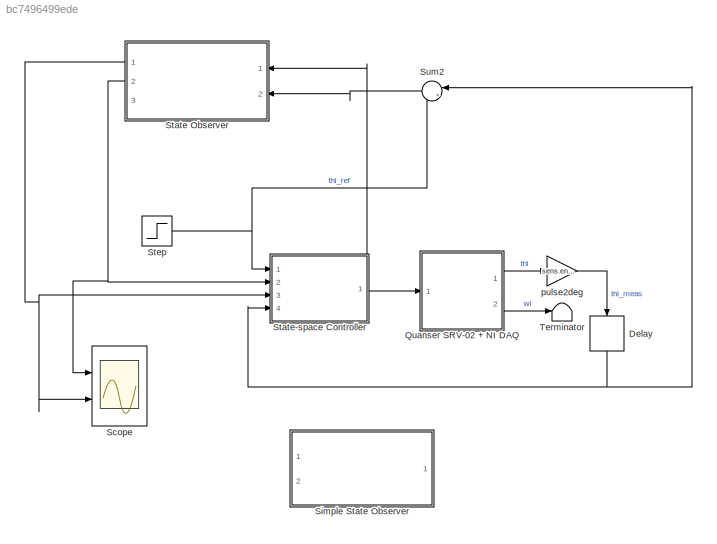
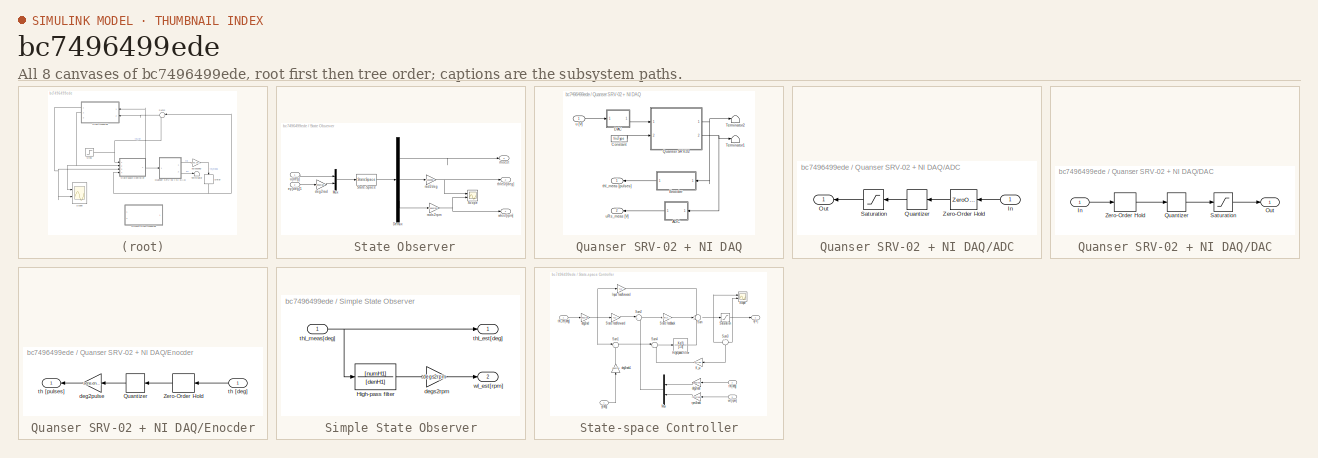
[diagram: thumbnail index - all 8 canvases of the model, root first then tree order]
MODEL slx_bc7496499ede
KIND model
CONFIG AbsTol = auto
CONFIG EnableMultiTasking = off
CONFIG FixedStep = 0.001
CONFIG MaxStep = auto
CONFIG MinStep = auto
CONFIG RelTol = 1e-3
CONFIG SampleTimeConstraint = Unconstrained
CONFIG SolverName = ode45
CONFIG StartTime = 0.0
CONFIG StopTime = 5
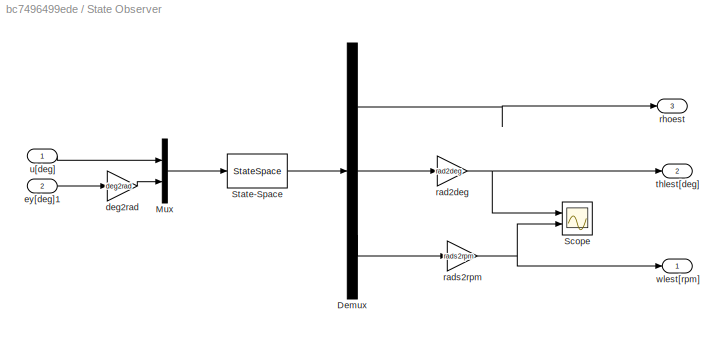
BLOCK [SubSystem]  State Observer
  Ports = [2, 3]
  RequestExecContextInheritance = off
BLOCK [Demux]  State Observer/Demux
  Outputs = 3
  Ports = [1, 3]
BLOCK [Mux]  State Observer/Mux
  DisplayOption = bar
  Inputs = 2
  Ports = [2, 1]
BLOCK [Scope]  State Observer/Scope
  Floating = off
  NumInputPorts = 2
  Ports = [2]
  ScopeSpecificationString = Simulink.scopes.TimeScopeBlockCfg('CurrentConfiguration', extmgr.ConfigurationSet(extmgr.Configuration('Core','General UI',true),extmgr.Configuration('Core','Source UI',true),extmgr.Configuration('Sources','WiredSimulink',true,'DataLoggingVariableName','ScopeData1'),extmgr.Configuration('Visuals','Time Domain',true,'SerializedDisplays',{struct('MinYLimReal','-1038.96463','MaxYLimReal','9350.68166'...<+2090ch>
BLOCK [StateSpace]  State Observer/State-Space
  A = Aest
  B = Best
  C = Cest
  D = Dest
  InitialCondition = 0
  Ports = [1, 1]
BLOCK [Gain]  State Observer/deg2rad
  Gain = deg2rad
BLOCK [Inport]  State Observer/ey[deg]1
  Port = 2
BLOCK [Gain]  State Observer/rad2deg
  Gain = rad2deg
BLOCK [Gain]  State Observer/rads2rpm
  Gain = rads2rpm
BLOCK [Outport]  State Observer/rhoest
  Port = 3
BLOCK [Outport]  State Observer/thlest[deg]
  Port = 2
BLOCK [Inport]  State Observer/u[deg]
BLOCK [Outport]  State Observer/wlest[rpm]
BLOCK [Delay] Delay
  DelayLength = 1
  InitialCondition = 0
  InputPortMap = u0
  NameLocation = left
  Ports = [1, 1]
  SampleTime = 0.001
BLOCK [SubSystem] Quanser SRV-02 + NI DAQ
  Ports = [1, 2]
  RequestExecContextInheritance = off
BLOCK [SubSystem] Quanser SRV-02 + NI DAQ/ADC
  Ports = [1, 1]
  RequestExecContextInheritance = off
BLOCK [Inport] Quanser SRV-02 + NI DAQ/ADC/In
BLOCK [Outport] Quanser SRV-02 + NI DAQ/ADC/Out
BLOCK [Quantizer] Quanser SRV-02 + NI DAQ/ADC/Quantizer
  QuantizationInterval = daq.adc.q
BLOCK [Saturate] Quanser SRV-02 + NI DAQ/ADC/Saturation
  LowerLimit = -daq.adc.fs
  UpperLimit = daq.adc.fs
BLOCK [ZeroOrderHold] Quanser SRV-02 + NI DAQ/ADC/Zero-Order Hold
  SampleTime = Ts
BLOCK [Constant] Quanser SRV-02 + NI DAQ/Constant
  Value = fricType
BLOCK [SubSystem] Quanser SRV-02 + NI DAQ/DAC
  Ports = [1, 1]
  RequestExecContextInheritance = off
BLOCK [Inport] Quanser SRV-02 + NI DAQ/DAC/In
BLOCK [Outport] Quanser SRV-02 + NI DAQ/DAC/Out
BLOCK [Quantizer] Quanser SRV-02 + NI DAQ/DAC/Quantizer
  QuantizationInterval = daq.dac.q
BLOCK [Saturate] Quanser SRV-02 + NI DAQ/DAC/Saturation
  LowerLimit = -daq.dac.fs
  UpperLimit = daq.dac.fs
BLOCK [ZeroOrderHold] Quanser SRV-02 + NI DAQ/DAC/Zero-Order Hold
  SampleTime = Ts
BLOCK [SubSystem] Quanser SRV-02 + NI DAQ/Enocder
  Ports = [1, 1]
  RequestExecContextInheritance = off
BLOCK [Quantizer] Quanser SRV-02 + NI DAQ/Enocder/Quantizer
  QuantizationInterval = sens.enc.pulse2deg
BLOCK [ZeroOrderHold] Quanser SRV-02 + NI DAQ/Enocder/Zero-Order Hold
  SampleTime = Ts
BLOCK [Gain] Quanser SRV-02 + NI DAQ/Enocder/deg2pulse
  Gain = sens.enc.deg2pulse
BLOCK [Inport] Quanser SRV-02 + NI DAQ/Enocder/th [deg]
BLOCK [Outport] Quanser SRV-02 + NI DAQ/Enocder/th [pulses]
BLOCK [ModelReference] Quanser SRV-02 + NI DAQ/Quanser SRV-02
  CopyOfModelProtected = on
  ModelNameDialog = SRV02IL_win64.slxp
  ModelReferenceVersion = 1.44
  Ports = [2, 2]
BLOCK [Terminator] Quanser SRV-02 + NI DAQ/Terminator1
BLOCK [Terminator] Quanser SRV-02 + NI DAQ/Terminator2
BLOCK [Outport] Quanser SRV-02 + NI DAQ/thl_meas [pulses]
BLOCK [Inport] Quanser SRV-02 + NI DAQ/u [V]
BLOCK [Outport] Quanser SRV-02 + NI DAQ/uRs_meas [V]
  Port = 2
BLOCK [Scope] Scope
  Floating = off
  NumInputPorts = 2
  Ports = [2]
  ScopeSpecificationString = Simulink.scopes.TimeScopeBlockCfg('CurrentConfiguration', extmgr.ConfigurationSet(extmgr.Configuration('Core','General UI',true),extmgr.Configuration('Core','Source UI',true),extmgr.Configuration('Sources','WiredSimulink',true,'DataLogging',true,'DataLoggingVariableName','MotorData','DataLoggingSaveFormat','StructureWithTime'),extmgr.Configuration('Visuals','Time Domain',true,'SerializedDisplays',...<+2131ch>
BLOCK [SubSystem] Simple State Observer
  Ports = [1, 2]
  RequestExecContextInheritance = off
BLOCK [TransferFcn] Simple State Observer/High-pass filter
  Denominator = [denH1]
  Numerator = [numH1]
BLOCK [Gain] Simple State Observer/degs2rpm
  Gain = degs2rpm
BLOCK [Outport] Simple State Observer/thl_est[deg]
BLOCK [Inport] Simple State Observer/thl_meas[deg]
BLOCK [Outport] Simple State Observer/wl_est[rpm]
  Port = 2
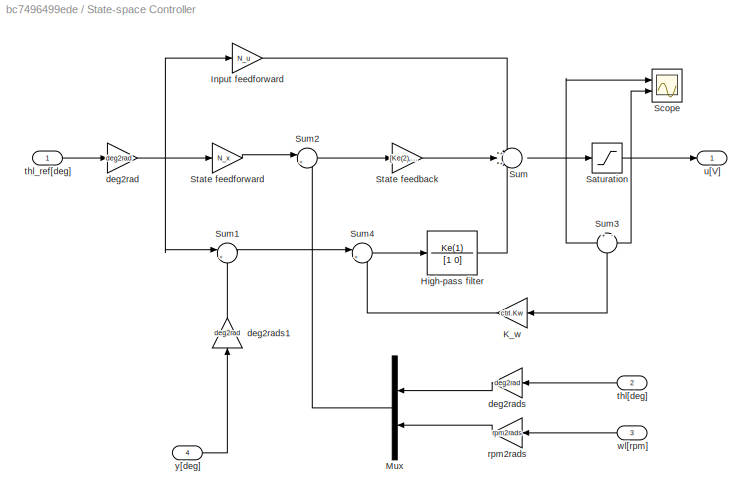
BLOCK [SubSystem] State-space Controller
  Ports = [4, 1]
  RequestExecContextInheritance = off
BLOCK [TransferFcn] State-space Controller/High-pass filter
  Denominator = [1 0]
  Numerator = Ke(1)
BLOCK [Gain] State-space Controller/Input feedforward
  Gain = N_u
BLOCK [Gain] State-space Controller/K_w
  Gain = ctrl.Kw
BLOCK [Mux] State-space Controller/Mux
  DisplayOption = bar
  Inputs = 2
  Ports = [2, 1]
BLOCK [Saturate] State-space Controller/Saturation
  LowerLimit = -10
  UpperLimit = 10
BLOCK [Scope] State-space Controller/Scope
  Floating = off
  NumInputPorts = 2
  Ports = [2]
  ScopeSpecificationString = Simulink.scopes.TimeScopeBlockCfg('CurrentConfiguration', extmgr.ConfigurationSet(extmgr.Configuration('Core','General UI',true),extmgr.Configuration('Core','Source UI',true),extmgr.Configuration('Sources','WiredSimulink',true,'DataLoggingVariableName','ScopeData1'),extmgr.Configuration('Visuals','Time Domain',true,'SerializedDisplays',{struct('MinYLimReal','-2.80705','MaxYLimReal','20.35947','YLa...<+2069ch>
BLOCK [Gain] State-space Controller/State feedback
  Gain = [Ke(2),Ke(3)].'
  Multiplication = Matrix(u*K)
BLOCK [Gain] State-space Controller/State feedforward	
  Gain = N_x
  Multiplication = Matrix(u*K)
BLOCK [Sum] State-space Controller/Sum
  Inputs = +|+|+
  Ports = [3, 1]
BLOCK [Sum] State-space Controller/Sum1
  Inputs = |+-
  Ports = [2, 1]
BLOCK [Sum] State-space Controller/Sum2
  Inputs = |+-
  Ports = [2, 1]
BLOCK [Sum] State-space Controller/Sum3
  Inputs = +|-
  NameLocation = left
  Ports = [2, 1]
BLOCK [Sum] State-space Controller/Sum4
  Inputs = |+-
  Ports = [2, 1]
BLOCK [Gain] State-space Controller/deg2rad
  Gain = deg2rad
BLOCK [Gain] State-space Controller/deg2rads
  Gain = deg2rad
  NameLocation = top
BLOCK [Gain] State-space Controller/deg2rads1
  Gain = deg2rad
  NameLocation = right
BLOCK [Gain] State-space Controller/rpm2rads
  Gain = rpm2rads
BLOCK [Inport] State-space Controller/thl[deg]
  Port = 2
BLOCK [Inport] State-space Controller/thl_ref[deg]
BLOCK [Outport] State-space Controller/u[V]
BLOCK [Inport] State-space Controller/wl[rpm]
  Port = 3
BLOCK [Inport] State-space Controller/y[deg]
  NameLocation = top
  Port = 4
BLOCK [Step] Step
  After = step_size
  SampleTime = 0
BLOCK [Sum] Sum2
  Inputs = |+-
  Ports = [2, 1]
BLOCK [Terminator] Terminator
BLOCK [Gain] pulse2deg
  Gain = sens.enc.pulse2deg
LINE  State Observer/Demux:1 ->  State Observer/rhoest:1
LINE  State Observer/Demux:2 ->  State Observer/rad2deg:1
LINE  State Observer/Demux:3 ->  State Observer/rads2rpm:1
LINE  State Observer/Mux:1 ->  State Observer/State-Space:1
LINE  State Observer/State-Space:1 ->  State Observer/Demux:1
LINE  State Observer/deg2rad:1 ->  State Observer/Mux:2
LINE  State Observer/ey[deg]1:1 ->  State Observer/deg2rad:1
NET  State Observer/rad2deg:1 ->  State Observer/Scope:1,  State Observer/thlest[deg]:1
NET  State Observer/rads2rpm:1 ->  State Observer/Scope:2,  State Observer/wlest[rpm]:1
LINE  State Observer/u[deg]:1 ->  State Observer/Mux:1
NET  State Observer:1 -> Scope:2, State-space Controller:3
NET  State Observer:2 -> Scope:1, State-space Controller:2
NET Delay:1 -> State-space Controller:4, Sum2:1
LINE Quanser SRV-02 + NI DAQ/ADC/In:1 -> Quanser SRV-02 + NI DAQ/ADC/Zero-Order Hold:1
LINE Quanser SRV-02 + NI DAQ/ADC/Quantizer:1 -> Quanser SRV-02 + NI DAQ/ADC/Saturation:1
LINE Quanser SRV-02 + NI DAQ/ADC/Saturation:1 -> Quanser SRV-02 + NI DAQ/ADC/Out:1
LINE Quanser SRV-02 + NI DAQ/ADC/Zero-Order Hold:1 -> Quanser SRV-02 + NI DAQ/ADC/Quantizer:1
LINE Quanser SRV-02 + NI DAQ/ADC:1 -> Quanser SRV-02 + NI DAQ/uRs_meas [V]:1
LINE Quanser SRV-02 + NI DAQ/Constant:1 -> Quanser SRV-02 + NI DAQ/Quanser SRV-02:2
LINE Quanser SRV-02 + NI DAQ/DAC/In:1 -> Quanser SRV-02 + NI DAQ/DAC/Zero-Order Hold:1
LINE Quanser SRV-02 + NI DAQ/DAC/Quantizer:1 -> Quanser SRV-02 + NI DAQ/DAC/Saturation:1
LINE Quanser SRV-02 + NI DAQ/DAC/Saturation:1 -> Quanser SRV-02 + NI DAQ/DAC/Out:1
LINE Quanser SRV-02 + NI DAQ/DAC/Zero-Order Hold:1 -> Quanser SRV-02 + NI DAQ/DAC/Quantizer:1
LINE Quanser SRV-02 + NI DAQ/DAC:1 -> Quanser SRV-02 + NI DAQ/Quanser SRV-02:1
LINE Quanser SRV-02 + NI DAQ/Enocder/Quantizer:1 -> Quanser SRV-02 + NI DAQ/Enocder/deg2pulse:1
LINE Quanser SRV-02 + NI DAQ/Enocder/Zero-Order Hold:1 -> Quanser SRV-02 + NI DAQ/Enocder/Quantizer:1
LINE Quanser SRV-02 + NI DAQ/Enocder/deg2pulse:1 -> Quanser SRV-02 + NI DAQ/Enocder/th [pulses]:1
LINE Quanser SRV-02 + NI DAQ/Enocder/th [deg]:1 -> Quanser SRV-02 + NI DAQ/Enocder/Zero-Order Hold:1
LINE Quanser SRV-02 + NI DAQ/Enocder:1 -> Quanser SRV-02 + NI DAQ/thl_meas [pulses]:1
NET Quanser SRV-02 + NI DAQ/Quanser SRV-02:1 -> Quanser SRV-02 + NI DAQ/Enocder:1, Quanser SRV-02 + NI DAQ/Terminator2:1
NET Quanser SRV-02 + NI DAQ/Quanser SRV-02:2 -> Quanser SRV-02 + NI DAQ/ADC:1, Quanser SRV-02 + NI DAQ/Terminator1:1
LINE Quanser SRV-02 + NI DAQ/u [V]:1 -> Quanser SRV-02 + NI DAQ/DAC:1
LINE Quanser SRV-02 + NI DAQ:1 -> pulse2deg:1
LINE Quanser SRV-02 + NI DAQ:2 -> Terminator:1
LINE Simple State Observer/High-pass filter:1 -> Simple State Observer/degs2rpm:1
LINE Simple State Observer/degs2rpm:1 -> Simple State Observer/wl_est[rpm]:1
NET Simple State Observer/thl_meas[deg]:1 -> Simple State Observer/High-pass filter:1, Simple State Observer/thl_est[deg]:1
LINE State-space Controller/High-pass filter:1 -> State-space Controller/Sum:3
LINE State-space Controller/Input feedforward:1 -> State-space Controller/Sum:1
LINE State-space Controller/K_w:1 -> State-space Controller/Sum4:2
LINE State-space Controller/Mux:1 -> State-space Controller/Sum2:2
NET State-space Controller/Saturation:1 -> State-space Controller/Scope:2, State-space Controller/Sum3:2, State-space Controller/u[V]:1
LINE State-space Controller/State feedback:1 -> State-space Controller/Sum:2
LINE State-space Controller/State feedforward	:1 -> State-space Controller/Sum2:1
LINE State-space Controller/Sum1:1 -> State-space Controller/Sum4:1
LINE State-space Controller/Sum2:1 -> State-space Controller/State feedback:1
LINE State-space Controller/Sum3:1 -> State-space Controller/K_w:1
LINE State-space Controller/Sum4:1 -> State-space Controller/High-pass filter:1
NET State-space Controller/Sum:1 -> State-space Controller/Saturation:1, State-space Controller/Scope:1, State-space Controller/Sum3:1
NET State-space Controller/deg2rad:1 -> State-space Controller/Input feedforward:1, State-space Controller/State feedforward	:1, State-space Controller/Sum1:1
LINE State-space Controller/deg2rads1:1 -> State-space Controller/Sum1:2
LINE State-space Controller/deg2rads:1 -> State-space Controller/Mux:1
LINE State-space Controller/rpm2rads:1 -> State-space Controller/Mux:2
LINE State-space Controller/thl[deg]:1 -> State-space Controller/deg2rads:1
LINE State-space Controller/thl_ref[deg]:1 -> State-space Controller/deg2rad:1
LINE State-space Controller/wl[rpm]:1 -> State-space Controller/rpm2rads:1
LINE State-space Controller/y[deg]:1 -> State-space Controller/deg2rads1:1
NET State-space Controller:1 ->  State Observer:1, Quanser SRV-02 + NI DAQ:1
NET Step:1 -> State-space Controller:1, Sum2:2
LINE Sum2:1 ->  State Observer:2
LINE pulse2deg:1 -> Delay:1
note: NET lines group one-source signal fan-out (src -> all destinations, sorted); 1:1 wires keep LINE
